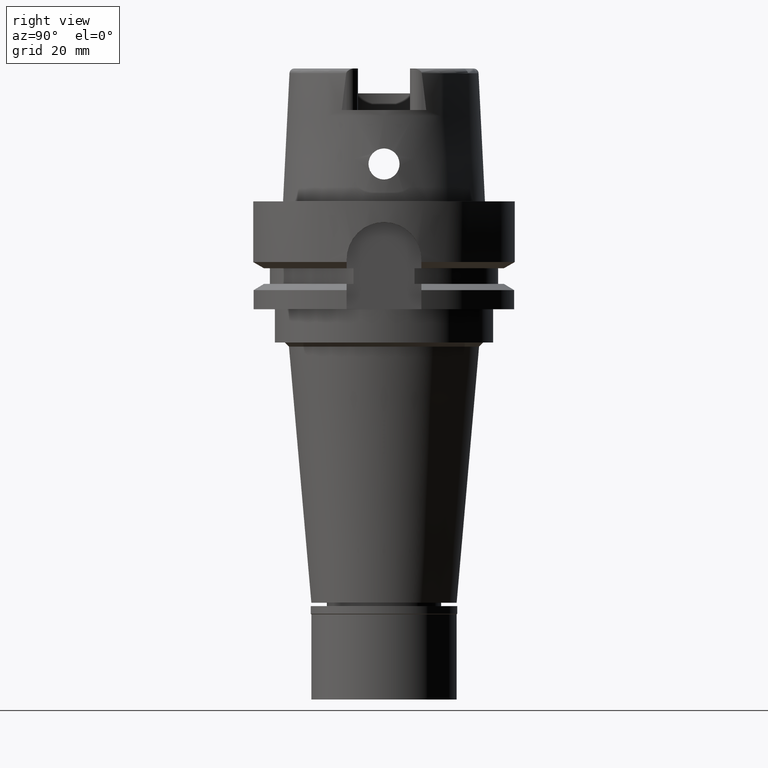
[diagram: clean part render]
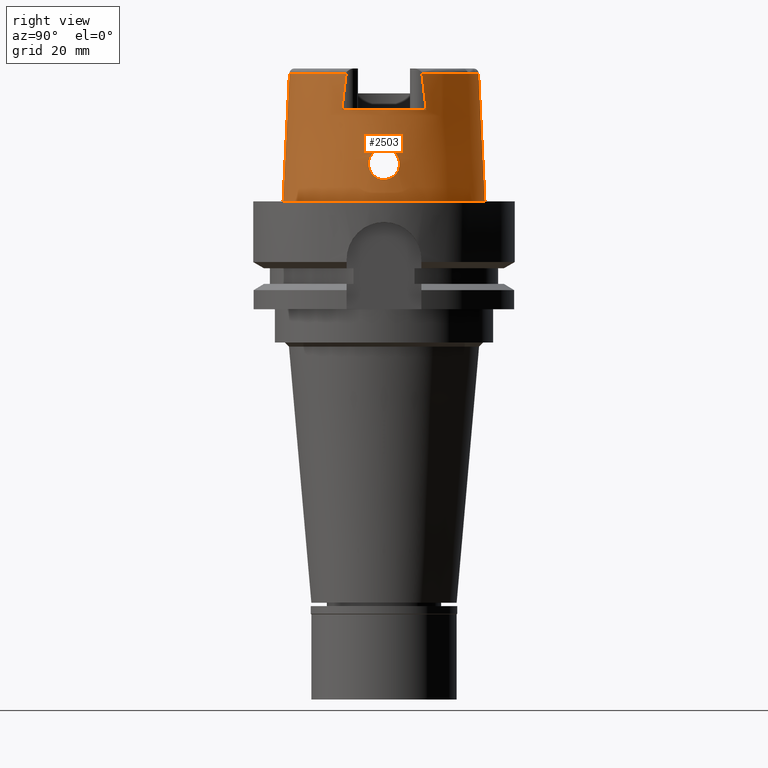
[diagram: same view with one face highlighted and labeled with its STEP entity id]
A machine part, right view. The second image highlights one B-rep face of the part: STEP entity #2503.
In plain terms, the highlighted conical surface has half-angle 2.862 deg.
Its self-contained STEP definition (entity closure, byte-faithful):
#2 = CARTESIAN_POINT ( 'NONE',  ( 23.67751368057999883, 0.0000000000000000000, 12.75000000000000000 ) ) ;
#16 = ORIENTED_EDGE ( 'NONE', *, *, #241, .F. ) ;
#34 = CARTESIAN_POINT ( 'NONE',  ( 24.05252611746999847, 0.2330206284105952597, 5.250000000000000000 ) ) ;
#56 = CARTESIAN_POINT ( 'NONE',  ( 23.59333819179920511, -2.501104577258603801, 11.79528361165681360 ) ) ;
#57 = CARTESIAN_POINT ( 'NONE',  ( 23.85444531008281999, 2.628061224790431361, 6.324954044176378076 ) ) ;
#85 = CARTESIAN_POINT ( 'NONE',  ( 23.54012346970142033, -3.448973503136997909, 10.47220976508766732 ) ) ;
#88 = CARTESIAN_POINT ( 'NONE',  ( 23.87185507047361099, 2.515850901416352148, 6.218977786022961141 ) ) ;
#113 = CARTESIAN_POINT ( 'NONE',  ( 0.0000000000000000000, 0.0000000000000000000, 30.85992712280000205 ) ) ;
#119 = CARTESIAN_POINT ( 'NONE',  ( 23.54997890340377964, -3.214046827833776376, 10.93583360577853547 ) ) ;
#120 = CARTESIAN_POINT ( 'NONE',  ( 23.94319568240380747, 1.974362149943470701, 5.811553053935080371 ) ) ;
#145 = CARTESIAN_POINT ( 'NONE',  ( 23.67205079440455862, -3.510857791499601532, 7.681567904071942010 ) ) ;
#146 = CARTESIAN_POINT ( 'NONE',  ( 23.57139888347374779, 3.749702560420886677, 8.944837237115336848 ) ) ;
#168 = CARTESIAN_POINT ( 'NONE',  ( 23.60596530400283299, -2.288684206395686704, 11.97314402743815087 ) ) ;
#173 = CARTESIAN_POINT ( 'NONE',  ( 20.87000000000000099, 9.459419187967647247, 28.07088142031913591 ) ) ;
#196 = CARTESIAN_POINT ( 'NONE',  ( 23.83743920342759637, -2.730987841632679380, 6.429811586938192214 ) ) ;
#216 = DIRECTION ( 'NONE',  ( 0.0000000000000000000, 0.0000000000000000000, -1.000000000000000000 ) ) ;
#221 = CARTESIAN_POINT ( 'NONE',  ( 23.76357115569841838, -3.127457779017551509, 6.930805173034158884 ) ) ;
#225 = CARTESIAN_POINT ( 'NONE',  ( 0.0000000000000000000, 0.0000000000000000000, 22.00000000000000000 ) ) ;
#241 = EDGE_CURVE ( 'NONE', #892, #3717, #2608, .T. ) ;
#273 = CARTESIAN_POINT ( 'NONE',  ( 23.75741479080602758, -3.156869633053569490, 6.975844215010423177 ) ) ;
#275 = CARTESIAN_POINT ( 'NONE',  ( 23.58310472703412586, 2.663353707504764412, 11.63990641978378093 ) ) ;
#326 = VERTEX_POINT ( 'NONE', #2642 ) ;
#389 = FACE_BOUND ( 'NONE', #4540, .T. ) ;
#407 = EDGE_CURVE ( 'NONE', #892, #326, #5213, .T. ) ;
#442 = CARTESIAN_POINT ( 'NONE',  ( 23.92162626728630315, 2.156623578562969268, 5.930404733941436746 ) ) ;
#474 = CARTESIAN_POINT ( 'NONE',  ( 23.54569491910034884, -3.703843008895926214, 9.599090505343392365 ) ) ;
#477 = CARTESIAN_POINT ( 'NONE',  ( 23.99866231913510717, 1.393681550184608042, 5.518563297037823112 ) ) ;
#480 = CARTESIAN_POINT ( 'NONE',  ( 20.87000000000000099, 9.811659030624156230, 25.11757557699920085 ) ) ;
#497 = ORIENTED_EDGE ( 'NONE', *, *, #3213, .F. ) ;
#499 = CARTESIAN_POINT ( 'NONE',  ( 23.55873825699269020, -3.744918861248046849, 9.210446024920234009 ) ) ;
#501 = CARTESIAN_POINT ( 'NONE',  ( 23.78133917609131842, 3.041200797881504769, 6.805142582907937054 ) ) ;
#524 = CARTESIAN_POINT ( 'NONE',  ( 23.58842366005098867, -2.579909520561684655, 11.72180550121627896 ) ) ;
#525 = CARTESIAN_POINT ( 'NONE',  ( 23.90976702329176717, 2.249124061427443255, 5.996826696203617857 ) ) ;
#550 = CARTESIAN_POINT ( 'NONE',  ( 23.62942742106744376, -1.853709978435128969, 12.26047952015733777 ) ) ;
#552 = CARTESIAN_POINT ( 'NONE',  ( 23.73891592203566958, 3.241956686018367950, 7.111214492155619737 ) ) ;
#579 = CARTESIAN_POINT ( 'NONE',  ( 23.63218521716880005, -1.797561979926379783, 12.29166557561178763 ) ) ;
#580 = CARTESIAN_POINT ( 'NONE',  ( 23.66769063980863308, 0.9503141192353988798, 12.66622881909846576 ) ) ;
#637 = CARTESIAN_POINT ( 'NONE',  ( 23.67751368057999883, 0.0000000000000000000, 12.75000000000000000 ) ) ;
#662 = CARTESIAN_POINT ( 'NONE',  ( 23.97378023506907141, -1.681349748253852860, 5.647557063888932305 ) ) ;
#681 = VERTEX_POINT ( 'NONE', #2110 ) ;
#686 = CARTESIAN_POINT ( 'NONE',  ( 23.67751368057998818, 0.4547686750912053877, 12.75000000000000000 ) ) ;
#820 = CARTESIAN_POINT ( 'NONE',  ( 0.0000000000000000000, 22.77198729362000051, 30.85992712280000205 ) ) ;
#851 = CARTESIAN_POINT ( 'NONE',  ( 23.77397626307294587, 3.077645118919007050, 6.856583337249822385 ) ) ;
#886 = AXIS2_PLACEMENT_3D ( 'NONE', #225, #4573, #1045 ) ;
#892 = VERTEX_POINT ( 'NONE', #1863 ) ;
#899 = CARTESIAN_POINT ( 'NONE',  ( 20.87000527243999670, -9.110771420352000050, 30.85992623711999983 ) ) ;
#909 = CARTESIAN_POINT ( 'NONE',  ( 23.64938649938713766, -1.406668152251788539, 12.47618365923676542 ) ) ;
#910 = CARTESIAN_POINT ( 'NONE',  ( 24.03379724497595049, 0.8295481251543790346, 5.340882007022766054 ) ) ;
#928 = EDGE_CURVE ( 'NONE', #3204, #3717, #4038, .T. ) ;
#934 = CARTESIAN_POINT ( 'NONE',  ( 23.64440452431539796, -1.531532566575376730, 12.42451896226506136 ) ) ;
#935 = CARTESIAN_POINT ( 'NONE',  ( 23.59634238757481484, 3.723340099524829139, 8.538302216285737600 ) ) ;
#936 = ORIENTED_EDGE ( 'NONE', *, *, #4109, .T. ) ;
#961 = CARTESIAN_POINT ( 'NONE',  ( 23.53850411621039740, -3.633744544169425605, 9.958045124343451349 ) ) ;
#962 = CARTESIAN_POINT ( 'NONE',  ( 23.75277519137609872, 3.178608120269889703, 7.006638946302321536 ) ) ;
#989 = CARTESIAN_POINT ( 'NONE',  ( 23.73367447683859766, -3.265749096569670940, 7.155614313024673656 ) ) ;
#991 = CARTESIAN_POINT ( 'NONE',  ( 23.53847571627819946, 3.573501909859066572, 10.13861566870812503 ) ) ;
#1014 = CARTESIAN_POINT ( 'NONE',  ( 23.67782572749102954, -3.490039127773870042, 7.627920332292656092 ) ) ;
#1015 = CARTESIAN_POINT ( 'NONE',  ( 23.62804850155889369, 1.887951122573732432, 12.24242396604399730 ) ) ;
#1039 = CARTESIAN_POINT ( 'NONE',  ( 23.77860793006452411, -3.054943060735184623, 6.821691685173983721 ) ) ;
#1042 = CARTESIAN_POINT ( 'NONE',  ( 23.57804048590833901, 2.745079752102564274, 11.55523859338885906 ) ) ;
#1045 = DIRECTION ( 'NONE',  ( 0.8989877876694615244, 0.4379736951246811505, 0.0000000000000000000 ) ) ;
#1053 = VERTEX_POINT ( 'NONE', #4020 ) ;
#1119 = CARTESIAN_POINT ( 'NONE',  ( 0.0000000000000000000, 0.0000000000000000000, -6.821210263297000155E-13 ) ) ;
#1147 = CARTESIAN_POINT ( 'NONE',  ( 23.99468422016874669, -1.443395001684639967, 5.538908309352845727 ) ) ;
#1231 = DIRECTION ( 'NONE',  ( 0.0000000000000000000, -1.000000000000000000, 0.0000000000000000000 ) ) ;
#1290 = CARTESIAN_POINT ( 'NONE',  ( 24.00093026853868494, 1.364287427761872173, 5.506939795178444008 ) ) ;
#1318 = CARTESIAN_POINT ( 'NONE',  ( 23.53991130874684146, -3.456837673737605421, 10.45355379586240296 ) ) ;
#1319 = CARTESIAN_POINT ( 'NONE',  ( 23.85643553946614048, 2.615540571800767378, 6.312710625131820130 ) ) ;
#1349 = CARTESIAN_POINT ( 'NONE',  ( 23.65232074144521235, -1.330177455993616809, 12.50642445202602993 ) ) ;
#1350 = CARTESIAN_POINT ( 'NONE',  ( 23.68884853374781940, 3.449234434623291268, 7.528128732823298641 ) ) ;
#1376 = CARTESIAN_POINT ( 'NONE',  ( 23.54198867848799637, -3.390552002235085460, 10.60375541867701088 ) ) ;
#1378 = CARTESIAN_POINT ( 'NONE',  ( 23.83838370554087405, 2.728149443932951890, 6.424168850781323492 ) ) ;
#1401 = CARTESIAN_POINT ( 'NONE',  ( 23.58491216268253865, -2.635084159458346953, 11.66815823371514149 ) ) ;
#1402 = CARTESIAN_POINT ( 'NONE',  ( 23.56144698077251221, 3.018196718638003873, 11.22952668626647821 ) ) ;
#1425 = CARTESIAN_POINT ( 'NONE',  ( 23.62502911468870792, -1.939969471885841124, 12.20938238521523012 ) ) ;
#1428 = CARTESIAN_POINT ( 'NONE',  ( 23.53882845546291236, 3.506273123647135392, 10.33051781844049266 ) ) ;
#1451 = CARTESIAN_POINT ( 'NONE',  ( 23.98852202440424719, -1.517744152978178773, 5.570679127785711948 ) ) ;
#1477 = CARTESIAN_POINT ( 'NONE',  ( 23.57585225532902484, 2.780598146946348326, 11.51634302632424145 ) ) ;
#1493 = CARTESIAN_POINT ( 'NONE',  ( 0.0000000000000000000, 0.0000000000000000000, 30.85992712280000205 ) ) ;
#1505 = CARTESIAN_POINT ( 'NONE',  ( 23.53940201038573221, 3.477388698988958193, 10.40368439850717230 ) ) ;
#1674 = CARTESIAN_POINT ( 'NONE',  ( 23.67751368058000239, -0.2269513872612732019, 12.75000000000000000 ) ) ;
#1695 = CARTESIAN_POINT ( 'NONE',  ( 20.87000000000000099, -10.16755860605000095, 22.00000000000000000 ) ) ;
#1706 = CARTESIAN_POINT ( 'NONE',  ( 24.00427732290040339, 1.320141843914369950, 5.489805347323913232 ) ) ;
#1725 = CARTESIAN_POINT ( 'NONE',  ( 23.65619804746822652, -1.222983913731681804, 12.54601526133428457 ) ) ;
#1726 = CARTESIAN_POINT ( 'NONE',  ( 23.85331694720525775, 2.635121393518725430, 6.331911800952712888 ) ) ;
#1734 = EDGE_LOOP ( 'NONE', ( #2795, #4362, #936, #5047, #497, #3540, #16, #3925 ) ) ;
#1745 = CARTESIAN_POINT ( 'NONE',  ( 20.87000000000000099, -9.811228181990475861, 25.12030646021867142 ) ) ;
#1756 = CARTESIAN_POINT ( 'NONE',  ( 23.56271551894606020, -3.748154601131988173, 9.121315281306792144 ) ) ;
#1758 = CARTESIAN_POINT ( 'NONE',  ( 23.82422885752787778, 2.811418817034421647, 6.515321000036132126 ) ) ;
#1788 = CARTESIAN_POINT ( 'NONE',  ( 23.54067280937226059, -3.430146464805382767, 10.51588118124957916 ) ) ;
#1789 = CARTESIAN_POINT ( 'NONE',  ( 24.01740948154369093, 1.127696303198503669, 5.423038006448773984 ) ) ;
#1812 = CARTESIAN_POINT ( 'NONE',  ( 23.61157244542376787, -2.189774713108130211, 12.04672734427118463 ) ) ;
#1813 = CARTESIAN_POINT ( 'NONE',  ( 23.96228084365979427, 1.797917986058273465, 5.708538723601398246 ) ) ;
#1841 = CARTESIAN_POINT ( 'NONE',  ( 23.62000812080645673, -2.035305620900380585, 12.14969530580331636 ) ) ;
#1863 = CARTESIAN_POINT ( 'NONE',  ( 20.87000000000000099, 10.16755860605000095, 22.00000000000000000 ) ) ;
#1869 = CARTESIAN_POINT ( 'NONE',  ( 23.79281216915763864, -2.981624777456258535, 6.722365721808820638 ) ) ;
#1870 = CARTESIAN_POINT ( 'NONE',  ( 23.64567498188359806, 1.498947631069049269, 12.43753578522877135 ) ) ;
#1895 = CARTESIAN_POINT ( 'NONE',  ( 23.84794709165774407, -2.668166512114644728, 6.364910613323234045 ) ) ;
#1897 = CARTESIAN_POINT ( 'NONE',  ( 23.60552657553621003, 2.290055366746530652, 11.97017078850747396 ) ) ;
#1923 = CARTESIAN_POINT ( 'NONE',  ( 23.60270230731519803, 2.338374531394473266, 11.93228113362235554 ) ) ;
#1931 = VERTEX_POINT ( 'NONE', #5359 ) ;
#1937 = CIRCLE ( 'NONE', #2459, 24.31503482328999866 ) ;
#1977 = CARTESIAN_POINT ( 'NONE',  ( 23.82490815689084585, -2.804288303879808097, 6.508992033671674449 ) ) ;
#1982 = CARTESIAN_POINT ( 'NONE',  ( 0.0000000000000000000, -24.31503482328999866, -3.801403636316999971E-13 ) ) ;
#2110 = CARTESIAN_POINT ( 'NONE',  ( 23.67751368057999883, 0.0000000000000000000, 12.75000000000000000 ) ) ;
#2120 = CARTESIAN_POINT ( 'NONE',  ( 23.54807056107686947, 3.727230252585097769, 9.479781320510948461 ) ) ;
#2138 = CARTESIAN_POINT ( 'NONE',  ( 20.87000000000000099, -9.458996941411141890, 28.07361520592533921 ) ) ;
#2145 = CARTESIAN_POINT ( 'NONE',  ( 23.66773446538893566, -0.8256753969521964942, 12.66003663761652653 ) ) ;
#2146 = CARTESIAN_POINT ( 'NONE',  ( 23.88985854456670310, 2.393002862041153200, 6.112126294945598559 ) ) ;
#2169 = CARTESIAN_POINT ( 'NONE',  ( 23.54348889162834624, -3.353180940573416535, 10.67987551544770852 ) ) ;
#2171 = CARTESIAN_POINT ( 'NONE',  ( 23.69852309611226460, 3.411756493341259855, 7.443269542296423680 ) ) ;
#2197 = CARTESIAN_POINT ( 'NONE',  ( 23.63993538101946967, -1.634007878084775101, 12.37752625270847773 ) ) ;
#2199 = CARTESIAN_POINT ( 'NONE',  ( 23.57450211864764356, 3.748431023573169263, 8.887852402833470222 ) ) ;
#2226 = CARTESIAN_POINT ( 'NONE',  ( 23.65176211179383969, -3.579631777665039927, 7.880719817346977685 ) ) ;
#2227 = CARTESIAN_POINT ( 'NONE',  ( 23.63430431680571431, 3.637380524808287330, 8.055101711950131360 ) ) ;
#2251 = CARTESIAN_POINT ( 'NONE',  ( 23.56547879928575995, -3.749604937745080413, 9.061992921395528811 ) ) ;
#2252 = CARTESIAN_POINT ( 'NONE',  ( 23.61122864887437700, 2.191615347195882357, 12.04353253072858898 ) ) ;
#2281 = CARTESIAN_POINT ( 'NONE',  ( 23.59430980799642796, 2.480454764770278597, 11.81512282904603062 ) ) ;
#2286 = EDGE_CURVE ( 'NONE', #5226, #681, #4259, .T. ) ;
#2306 = CARTESIAN_POINT ( 'NONE',  ( 23.75052765708723967, -3.189268332251436799, 7.026898148130331201 ) ) ;
#2344 = DIRECTION ( 'NONE',  ( 0.9164775804687985694, -0.4000860463675992573, 0.0000000000000000000 ) ) ;
#2382 = DIRECTION ( 'NONE',  ( 0.0000000000000000000, 0.0000000000000000000, 1.000000000000000000 ) ) ;
#2459 = AXIS2_PLACEMENT_3D ( 'NONE', #1119, #2382, #4064 ) ;
#2503 = ADVANCED_FACE ( 'NONE', ( #2892, #389 ), #4483, .T. ) ;
#2530 = CARTESIAN_POINT ( 'NONE',  ( 23.93529964074429373, 2.042254329094079779, 5.854882687247732420 ) ) ;
#2558 = CARTESIAN_POINT ( 'NONE',  ( 23.95663938298303108, 1.852160069758198135, 5.738715043770866941 ) ) ;
#2584 = CARTESIAN_POINT ( 'NONE',  ( 23.61880226424466755, -2.057618877119650858, 12.13508920333068097 ) ) ;
#2585 = CARTESIAN_POINT ( 'NONE',  ( 23.80284653701512809, 2.929286350929843685, 6.657867884028465966 ) ) ;
#2607 = CARTESIAN_POINT ( 'NONE',  ( 23.61752556299038019, -2.081093538118418351, 12.11955267746744980 ) ) ;
#2608 = B_SPLINE_CURVE_WITH_KNOTS ( 'NONE', 3,
 ( #5194, #480, #173, #3096 ),
 .UNSPECIFIED., .F., .F.,
 ( 4, 4 ),
 ( 0.0000000000000000000, 1.000000000000000000 ),
 .UNSPECIFIED. ) ;
#2609 = CARTESIAN_POINT ( 'NONE',  ( 23.93369273856030688, 2.055826831332561611, 5.863737623340374405 ) ) ;
#2634 = B_SPLINE_CURVE_WITH_KNOTS ( 'NONE', 3,
 ( #2, #1674, #3007, #2145, #4686, #5222, #1725, #1349, #3445, #909, #3415, #4299, #934, #2197, #579, #550, #1425, #2637, #1841, #2584, #4714, #2607, #1812, #168, #5138, #56, #524, #3870, #1401, #5107, #3496, #3842, #119, #3059, #2169, #1376, #1788, #85, #1318, #2670, #4736, #3034, #961, #474, #4273, #3117, #499, #1756, #2251, #5164, #3524, #3473, #4330, #4793, #2226, #3896, #145, #1014, #5190, #2693, #3818, #3088, #4354, #4767, #989, #3916, #2306, #273, #3974, #4491, #221, #1039, #1869, #3196, #1977, #196, #2748, #4900, #1895, #5251, #3653, #4928, #2720, #662, #2773, #1451, #4407, #3139, #1147, #4438, #5353, #4377, #4817 ),
 .UNSPECIFIED., .F., .F.,
 ( 4, 2, 2, 1, 1, 1, 2, 2, 2, 2, 1, 1, 2, 2, 2, 1, 1, 2, 2, 2, 2, 1, 1, 1, 2, 2, 2, 2, 1, 2, 2, 2, 2, 1, 1, 1, 2, 2, 2, 2, 1, 1, 2, 2, 2, 1, 1, 2, 2, 2, 2, 1, 1, 1, 2, 2, 4 ),
 ( 0.0000000000000000000, 0.06250000000000727196, 0.09375000000001096345, 0.1093750000000128508, 0.1171875000000138917, 0.1210937500000143774, 0.1230468750000145162, 0.1250000000000146549, 0.1562500000000181521, 0.1718750000000197897, 0.1796875000000207057, 0.1835937500000212885, 0.1855468750000215938, 0.1875000000000218991, 0.2187500000000263956, 0.2343750000000286715, 0.2421875000000299483, 0.2460937500000304479, 0.2500000000000309197, 0.3125000000000363598, 0.3437500000000390243, 0.3593750000000405787, 0.3671875000000415779, 0.3710937500000420219, 0.3730468750000422440, 0.3750000000000424660, 0.4375000000000469069, 0.4687500000000488498, 0.4843750000000496270, 0.4921875000000498490, 0.5000000000000499600, 0.5625000000000509592, 0.5937500000000515143, 0.6093750000000518474, 0.6171875000000518474, 0.6210937500000517364, 0.6230468750000515143, 0.6250000000000512923, 0.6562500000000462963, 0.6718750000000438538, 0.6796875000000426326, 0.6835937500000419664, 0.6855468750000416334, 0.6875000000000413003, 0.7187500000000370814, 0.7343750000000349720, 0.7421875000000337508, 0.7460937500000331957, 0.7500000000000326406, 0.8125000000000235367, 0.8437500000000189848, 0.8593750000000168754, 0.8671875000000158762, 0.8710937500000153211, 0.8730468750000150990, 0.8750000000000148770, 1.000000000000000000 ),
 .UNSPECIFIED. ) ;
#2637 = CARTESIAN_POINT ( 'NONE',  ( 23.62276455844266820, -1.983607422093945472, 12.18275417012418771 ) ) ;
#2638 = CARTESIAN_POINT ( 'NONE',  ( 23.70845385947058759, 3.372285922813640813, 7.357726895347577845 ) ) ;
#2642 = CARTESIAN_POINT ( 'NONE',  ( 20.87000000000000099, -10.16755860605000095, 22.00000000000000000 ) ) ;
#2670 = CARTESIAN_POINT ( 'NONE',  ( 23.53977503929554871, -3.462035369318939182, 10.44113026532034993 ) ) ;
#2693 = CARTESIAN_POINT ( 'NONE',  ( 23.68201647359731865, -3.474675521621258589, 7.589610597458180230 ) ) ;
#2694 = CARTESIAN_POINT ( 'NONE',  ( 23.53953854797020639, 3.471460714865209241, 10.41828155160253644 ) ) ;
#2720 = CARTESIAN_POINT ( 'NONE',  ( 23.95873978133038662, -1.834440388006888689, 5.727299138908927389 ) ) ;
#2723 = CARTESIAN_POINT ( 'NONE',  ( 23.53962613877423848, 3.467840208284961090, 10.42710304726953296 ) ) ;
#2748 = CARTESIAN_POINT ( 'NONE',  ( 23.84281696175266418, -2.698952979478635772, 6.396465790414782582 ) ) ;
#2751 = CARTESIAN_POINT ( 'NONE',  ( 23.54618831461440820, 3.289801008922267123, 10.81642949159175870 ) ) ;
#2773 = CARTESIAN_POINT ( 'NONE',  ( 23.98090419754306879, -1.605299847173069061, 5.610183344315630372 ) ) ;
#2775 = CARTESIAN_POINT ( 'NONE',  ( 23.64681667816948263, 1.471097715601739964, 12.44956119125925653 ) ) ;
#2778 = ORIENTED_EDGE ( 'NONE', *, *, #2286, .F. ) ;
#2788 = CARTESIAN_POINT ( 'NONE',  ( 24.05252611746999847, 0.0000000000000000000, 5.250000000000000000 ) ) ;
#2795 = ORIENTED_EDGE ( 'NONE', *, *, #3143, .F. ) ;
#2892 = FACE_OUTER_BOUND ( 'NONE', #1734, .T. ) ;
#2955 = CARTESIAN_POINT ( 'NONE',  ( 23.71853918571125774, 3.330005339325847746, 7.274489089508011652 ) ) ;
#2979 = CARTESIAN_POINT ( 'NONE',  ( 23.99739252513016652, 1.409832349321153755, 5.525079006410265947 ) ) ;
#3007 = CARTESIAN_POINT ( 'NONE',  ( 23.67506887678223393, -0.4635051429249743005, 12.72935586687458809 ) ) ;
#3009 = CARTESIAN_POINT ( 'NONE',  ( 23.98791529884973528, 1.528519574464706654, 5.573758551561998509 ) ) ;
#3034 = CARTESIAN_POINT ( 'NONE',  ( 23.53728696348313321, -3.562875074288860411, 10.19646462181034252 ) ) ;
#3035 = CARTESIAN_POINT ( 'NONE',  ( 23.65783237490413882, 3.565134841456601311, 7.806601852422344834 ) ) ;
#3059 = CARTESIAN_POINT ( 'NONE',  ( 23.54698575167824970, -3.273586086686905983, 10.83285318657880936 ) ) ;
#3088 = CARTESIAN_POINT ( 'NONE',  ( 23.69435542170927178, -3.428888603837092930, 7.478149917515295009 ) ) ;
#3090 = CARTESIAN_POINT ( 'NONE',  ( 23.58186907650325281, 2.683260232001078993, 11.61967469033762690 ) ) ;
#3096 = CARTESIAN_POINT ( 'NONE',  ( 20.86994457043000040, 9.110917567833000774, 30.85992712280000205 ) ) ;
#3117 = CARTESIAN_POINT ( 'NONE',  ( 23.55526397070801892, -3.738467422146296126, 9.299942064375525064 ) ) ;
#3118 = CARTESIAN_POINT ( 'NONE',  ( 23.58265110687879229, 2.670658400361637153, 11.63252059145067996 ) ) ;
#3139 = CARTESIAN_POINT ( 'NONE',  ( 23.99367851427094323, -1.455744018361910808, 5.544084177101752609 ) ) ;
#3140 = CARTESIAN_POINT ( 'NONE',  ( 23.55712716048165234, 3.092150763609360364, 11.12509537413444427 ) ) ;
#3143 = EDGE_CURVE ( 'NONE', #1053, #326, #5072, .T. ) ;
#3158 = DIRECTION ( 'NONE',  ( 0.0000000000000000000, 1.000000000000000000, 0.0000000000000000000 ) ) ;
#3177 = AXIS2_PLACEMENT_3D ( 'NONE', #113, #216, #3158 ) ;
#3196 = CARTESIAN_POINT ( 'NONE',  ( 23.81419649909655689, -2.864577946382908191, 6.579154229658604969 ) ) ;
#3198 = CARTESIAN_POINT ( 'NONE',  ( 23.58882188224290033, 2.571336098065132525, 11.73236217465924192 ) ) ;
#3204 = VERTEX_POINT ( 'NONE', #820 ) ;
#3213 = EDGE_CURVE ( 'NONE', #3204, #1931, #4178, .T. ) ;
#3314 = DIRECTION ( 'NONE',  ( 8.032179027582384478E-05, -0.04993928193351242217, -0.9987522523971473776 ) ) ;
#3339 = VECTOR ( 'NONE', #3437, 1000.000000000000000 ) ;
#3415 = CARTESIAN_POINT ( 'NONE',  ( 23.64878484845253226, -1.421956488100810434, 12.46995790597698672 ) ) ;
#3416 = CARTESIAN_POINT ( 'NONE',  ( 23.93272532167772937, 2.063943773005807447, 5.869076999087940116 ) ) ;
#3437 = DIRECTION ( 'NONE',  ( -8.032179027593385064E-05, 0.04993928193351242217, -0.9987522523971473776 ) ) ;
#3445 = CARTESIAN_POINT ( 'NONE',  ( 23.65028181327793533, -1.383730428239752674, 12.48543614887560516 ) ) ;
#3468 = EDGE_CURVE ( 'NONE', #1053, #4426, #4015, .T. ) ;
#3473 = CARTESIAN_POINT ( 'NONE',  ( 23.59495348939770665, -3.730342684931128971, 8.545370871931634582 ) ) ;
#3474 = CARTESIAN_POINT ( 'NONE',  ( 24.01170302820565894, 1.216785074032606051, 5.451925338324097758 ) ) ;
#3496 = CARTESIAN_POINT ( 'NONE',  ( 23.57090186726154357, -2.851781625049270907, 11.45073863210614284 ) ) ;
#3497 = CARTESIAN_POINT ( 'NONE',  ( 23.56998632670678262, 3.750010322587971956, 8.971669764656951429 ) ) ;
#3524 = CARTESIAN_POINT ( 'NONE',  ( 23.57970005628003207, -3.750167328868399430, 8.779390912065066388 ) ) ;
#3540 = ORIENTED_EDGE ( 'NONE', *, *, #928, .T. ) ;
#3575 = CARTESIAN_POINT ( 'NONE',  ( 23.62264525851880137, 1.991679634917923991, 12.17960541680815467 ) ) ;
#3601 = CARTESIAN_POINT ( 'NONE',  ( 23.57160208260821932, 2.849850593792381481, 11.43837747627181933 ) ) ;
#3653 = CARTESIAN_POINT ( 'NONE',  ( 23.91123496931431802, -2.248781553624042751, 5.988928207454921271 ) ) ;
#3717 = VERTEX_POINT ( 'NONE', #4124 ) ;
#3736 = CARTESIAN_POINT ( 'NONE',  ( 0.0000000000000000000, 0.0000000000000000000, 15.42996356139999925 ) ) ;
#3798 = CARTESIAN_POINT ( 'NONE',  ( 24.05252611746999847, 0.0000000000000000000, 5.250000000000000000 ) ) ;
#3818 = CARTESIAN_POINT ( 'NONE',  ( 23.68304362733470114, -3.470877625524187771, 7.580299075644321150 ) ) ;
#3819 = CARTESIAN_POINT ( 'NONE',  ( 23.86621557181318565, 2.553079942517995526, 6.252940660098202486 ) ) ;
#3835 = CARTESIAN_POINT ( 'NONE',  ( 0.002481821280839999633, 22.77198688789000158, 30.85992712280000205 ) ) ;
#3842 = CARTESIAN_POINT ( 'NONE',  ( 23.56094409365704223, -3.013962344041193120, 11.24471067885847475 ) ) ;
#3846 = CARTESIAN_POINT ( 'NONE',  ( 23.85940432406666289, 2.596772025734658040, 6.294486332334705558 ) ) ;
#3870 = CARTESIAN_POINT ( 'NONE',  ( 23.58631684051568911, -2.613093869546720960, 11.68969836905694137 ) ) ;
#3872 = CARTESIAN_POINT ( 'NONE',  ( 24.04784389934648559, 0.4712513736940674436, 5.271783206853585035 ) ) ;
#3896 = CARTESIAN_POINT ( 'NONE',  ( 23.66082602751054509, -3.550080215715573750, 7.788869906547333244 ) ) ;
#3897 = CARTESIAN_POINT ( 'NONE',  ( 23.57934643363695670, 3.745538139941031464, 8.801895674855767737 ) ) ;
#3916 = CARTESIAN_POINT ( 'NONE',  ( 23.74482207473038642, -3.215438586483871486, 7.070091031274563953 ) ) ;
#3925 = ORIENTED_EDGE ( 'NONE', *, *, #407, .T. ) ;
#3934 = ORIENTED_EDGE ( 'NONE', *, *, #4539, .F. ) ;
#3974 = CARTESIAN_POINT ( 'NONE',  ( 23.76041583832176585, -3.142574827572143459, 6.953832695458265434 ) ) ;
#3976 = CARTESIAN_POINT ( 'NONE',  ( 23.53920776526702952, 3.486207550818824163, 10.38177082370857285 ) ) ;
#4015 = CIRCLE ( 'NONE', #4209, 22.77198729362001117 ) ;
#4020 = CARTESIAN_POINT ( 'NONE',  ( 20.87000527243999670, -9.110771420352000050, 30.85992623711999983 ) ) ;
#4032 = CARTESIAN_POINT ( 'NONE',  ( 23.54158990404333807, 3.389280172414547376, 10.61710521059370294 ) ) ;
#4038 = CIRCLE ( 'NONE', #3177, 22.77198729362000051 ) ;
#4064 = DIRECTION ( 'NONE',  ( 0.0000000000000000000, -1.000000000000000000, 0.0000000000000000000 ) ) ;
#4105 = DIRECTION ( 'NONE',  ( 0.0000000000000000000, 0.0000000000000000000, -1.000000000000000000 ) ) ;
#4109 = EDGE_CURVE ( 'NONE', #4426, #4346, #5025, .T. ) ;
#4124 = CARTESIAN_POINT ( 'NONE',  ( 20.86994457043000040, 9.110917567833000774, 30.85992712280000205 ) ) ;
#4160 = CARTESIAN_POINT ( 'NONE',  ( 0.0000000000000000000, -22.77198729362000051, 30.85992712280000205 ) ) ;
#4178 = LINE ( 'NONE', #3835, #3339 ) ;
#4209 = AXIS2_PLACEMENT_3D ( 'NONE', #1493, #4105, #2344 ) ;
#4217 = CARTESIAN_POINT ( 'NONE',  ( 24.02794447232157182, 0.9491222930176445027, 5.369973678452584664 ) ) ;
#4247 = CARTESIAN_POINT ( 'NONE',  ( 23.93769659376928161, 2.021892078297302664, 5.841692073259117102 ) ) ;
#4255 = CARTESIAN_POINT ( 'NONE',  ( -0.002481821280835999795, -22.77198688789000158, 30.85992712280000205 ) ) ;
#4259 = B_SPLINE_CURVE_WITH_KNOTS ( 'NONE', 3,
 ( #3798, #34, #3872, #910, #4217, #1789, #3474, #1706, #1290, #477, #2979, #3009, #4687, #1813, #2558, #4660, #120, #4247, #2530, #2609, #3416, #442, #525, #2146, #5110, #88, #3819, #3846, #1319, #57, #1726, #1378, #1758, #2585, #4275, #501, #851, #962, #552, #2955, #2638, #2171, #4332, #1350, #3035, #2227, #4716, #935, #4301, #3897, #2199, #146, #3497, #5191, #2120, #4851, #5307, #991, #4818, #1428, #3976, #1505, #2694, #2723, #4032, #2751, #3140, #1402, #4378, #3601, #1477, #1042, #5224, #3090, #3118, #275, #3198, #2281, #1923, #1897, #2252, #4410, #3575, #1015, #4440, #4878, #4464, #1870, #2775, #580, #686, #637 ),
 .UNSPECIFIED., .F., .F.,
 ( 4, 2, 2, 1, 1, 2, 2, 2, 2, 1, 1, 2, 2, 2, 2, 1, 1, 2, 2, 2, 2, 2, 2, 1, 2, 2, 2, 2, 1, 2, 2, 2, 2, 1, 1, 1, 2, 2, 2, 2, 2, 1, 1, 2, 2, 2, 2, 2, 2, 1, 2, 2, 4 ),
 ( 0.0000000000000000000, 0.06249999999999898692, 0.09374999999999847344, 0.1093749999999981959, 0.1171874999999980571, 0.1210937499999979461, 0.1249999999999978212, 0.1562499999999966971, 0.1718749999999960587, 0.1796874999999957256, 0.1835937499999955314, 0.1855468749999955314, 0.1874999999999955314, 0.2187499999999950318, 0.2343749999999947820, 0.2421874999999946432, 0.2460937499999944766, 0.2480468749999945044, 0.2499999999999945322, 0.2812499999999967804, 0.2968749999999978906, 0.3124999999999990563, 0.3437500000000014988, 0.3593750000000026645, 0.3671875000000032752, 0.3750000000000038303, 0.4375000000000068834, 0.4687500000000086597, 0.4843750000000096034, 0.4921875000000100475, 0.5000000000000105471, 0.5625000000000156541, 0.5937500000000182077, 0.6093750000000193179, 0.6171875000000198730, 0.6210937500000198730, 0.6230468750000198730, 0.6250000000000198730, 0.6875000000000190958, 0.7187500000000186517, 0.7343750000000184297, 0.7421875000000182077, 0.7460937500000179856, 0.7480468750000177636, 0.7500000000000174305, 0.7812500000000153211, 0.7968750000000143219, 0.8125000000000132117, 0.8437500000000112133, 0.8593750000000102141, 0.8671875000000094369, 0.8750000000000088818, 1.000000000000000000 ),
 .UNSPECIFIED. ) ;
#4273 = CARTESIAN_POINT ( 'NONE',  ( 23.54898603236350851, -3.721192556881464775, 9.479209336651615914 ) ) ;
#4275 = CARTESIAN_POINT ( 'NONE',  ( 23.79569408876200498, 2.967403451601950071, 6.706352657922328042 ) ) ;
#4299 = CARTESIAN_POINT ( 'NONE',  ( 23.64841175442501608, -1.431346043313669991, 12.46609134555303022 ) ) ;
#4301 = CARTESIAN_POINT ( 'NONE',  ( 23.58475913531163215, 3.739587043079369622, 8.714569916990241083 ) ) ;
#4330 = CARTESIAN_POINT ( 'NONE',  ( 23.62377831160324249, -3.662485773487997864, 8.185377997611853473 ) ) ;
#4332 = CARTESIAN_POINT ( 'NONE',  ( 23.69193693451389748, 3.437424228148800776, 7.500797957734231858 ) ) ;
#4346 = VERTEX_POINT ( 'NONE', #1982 ) ;
#4354 = CARTESIAN_POINT ( 'NONE',  ( 23.70640750613148384, -3.381793009131023098, 7.374863827594539067 ) ) ;
#4362 = ORIENTED_EDGE ( 'NONE', *, *, #3468, .T. ) ;
#4377 = CARTESIAN_POINT ( 'NONE',  ( 24.05252611746999492, -0.4684032865622461128, 5.249999999999996447 ) ) ;
#4378 = CARTESIAN_POINT ( 'NONE',  ( 23.56893701871145552, 2.893638972048011571, 11.38616924561897648 ) ) ;
#4407 = CARTESIAN_POINT ( 'NONE',  ( 23.99215757216187583, -1.474292617977684072, 5.551916808151428739 ) ) ;
#4410 = CARTESIAN_POINT ( 'NONE',  ( 23.61419391207579110, 2.139960033957108543, 12.08003500739064684 ) ) ;
#4426 = VERTEX_POINT ( 'NONE', #4160 ) ;
#4438 = CARTESIAN_POINT ( 'NONE',  ( 23.99508537015142551, -1.438443636356745658, 5.536844860276525893 ) ) ;
#4440 = CARTESIAN_POINT ( 'NONE',  ( 23.63580688423617460, 1.725314063223735594, 12.33010278181370367 ) ) ;
#4464 = CARTESIAN_POINT ( 'NONE',  ( 23.64326209526594269, 1.556598782634977418, 12.41181718521306898 ) ) ;
#4483 = CONICAL_SURFACE ( 'NONE', #5108, 23.54351105844999736, 0.04996004983832824653 ) ;
#4491 = CARTESIAN_POINT ( 'NONE',  ( 23.76242751861649083, -3.132952858019927511, 6.939130383917887279 ) ) ;
#4539 = EDGE_CURVE ( 'NONE', #681, #5226, #2634, .T. ) ;
#4540 = EDGE_LOOP ( 'NONE', ( #2778, #3934 ) ) ;
#4573 = DIRECTION ( 'NONE',  ( 0.0000000000000000000, 0.0000000000000000000, -1.000000000000000000 ) ) ;
#4639 = EDGE_CURVE ( 'NONE', #4346, #1931, #1937, .T. ) ;
#4660 = CARTESIAN_POINT ( 'NONE',  ( 23.94774838393560401, 1.933613314520693960, 5.786803200496181354 ) ) ;
#4686 = CARTESIAN_POINT ( 'NONE',  ( 23.66467846064172775, -0.9475912546230652600, 12.63054559880869832 ) ) ;
#4687 = CARTESIAN_POINT ( 'NONE',  ( 23.97834760962543399, 1.635791438520002306, 5.623375643611203678 ) ) ;
#4714 = CARTESIAN_POINT ( 'NONE',  ( 23.61799290961543463, -2.072527906661027153, 12.12525324292784390 ) ) ;
#4716 = CARTESIAN_POINT ( 'NONE',  ( 23.60507502096870880, 3.706713120084413671, 8.418626359689731942 ) ) ;
#4736 = CARTESIAN_POINT ( 'NONE',  ( 23.53972026296998621, -3.464174704108796465, 10.43598581007719162 ) ) ;
#4767 = CARTESIAN_POINT ( 'NONE',  ( 23.72659416733992899, -3.296582928251468481, 7.211477179058648268 ) ) ;
#4793 = CARTESIAN_POINT ( 'NONE',  ( 23.63437736442657311, -3.633519123585600141, 8.063919906026017159 ) ) ;
#4817 = CARTESIAN_POINT ( 'NONE',  ( 24.05252611746999847, 0.0000000000000000000, 5.250000000000000000 ) ) ;
#4818 = CARTESIAN_POINT ( 'NONE',  ( 23.53836555107922379, 3.544358573376882759, 10.22755503356384388 ) ) ;
#4851 = CARTESIAN_POINT ( 'NONE',  ( 23.54087069514795871, 3.656718667922326471, 9.840174060235479914 ) ) ;
#4878 = CARTESIAN_POINT ( 'NONE',  ( 23.63959945510407934, 1.642237172702917247, 12.37230420096502748 ) ) ;
#4900 = CARTESIAN_POINT ( 'NONE',  ( 23.84640375837144077, -2.677460166250193563, 6.374367766792042644 ) ) ;
#4928 = CARTESIAN_POINT ( 'NONE',  ( 23.94765610711704440, -1.937835651601981679, 5.787125750776193733 ) ) ;
#5015 = DIRECTION ( 'NONE',  ( 0.0000000000000000000, 0.0000000000000000000, -1.000000000000000000 ) ) ;
#5025 = LINE ( 'NONE', #4255, #5379 ) ;
#5047 = ORIENTED_EDGE ( 'NONE', *, *, #4639, .T. ) ;
#5072 = B_SPLINE_CURVE_WITH_KNOTS ( 'NONE', 3,
 ( #899, #2138, #1745, #1695 ),
 .UNSPECIFIED., .F., .F.,
 ( 4, 4 ),
 ( 0.0000000000000000000, 1.000000000000000000 ),
 .UNSPECIFIED. ) ;
#5107 = CARTESIAN_POINT ( 'NONE',  ( 23.58429512640833892, -2.644693019214278795, 11.65864566953740322 ) ) ;
#5108 = AXIS2_PLACEMENT_3D ( 'NONE', #3736, #5015, #1231 ) ;
#5110 = CARTESIAN_POINT ( 'NONE',  ( 23.88286911620279085, 2.441808228644961609, 6.153171268641784764 ) ) ;
#5138 = CARTESIAN_POINT ( 'NONE',  ( 23.59754828101056745, -2.431261702487407472, 11.85574101331722474 ) ) ;
#5164 = CARTESIAN_POINT ( 'NONE',  ( 23.56699844841940461, -3.749977885765248153, 9.030755630981808224 ) ) ;
#5190 = CARTESIAN_POINT ( 'NONE',  ( 23.68033553087937904, -3.480855900362971767, 7.604933532671464214 ) ) ;
#5191 = CARTESIAN_POINT ( 'NONE',  ( 23.55647538110043726, 3.749915280871790380, 9.238656192762492836 ) ) ;
#5194 = CARTESIAN_POINT ( 'NONE',  ( 20.87000000000000099, 10.16755860605000095, 22.00000000000000000 ) ) ;
#5213 = CIRCLE ( 'NONE', #886, 23.21499834174998966 ) ;
#5222 = CARTESIAN_POINT ( 'NONE',  ( 23.65917765209675139, -1.131085051614149073, 12.57592215221918153 ) ) ;
#5224 = CARTESIAN_POINT ( 'NONE',  ( 23.58070392396732018, 2.702047492883545843, 11.60038483819852573 ) ) ;
#5226 = VERTEX_POINT ( 'NONE', #2788 ) ;
#5251 = CARTESIAN_POINT ( 'NONE',  ( 23.88272739056226612, -2.457320612852021302, 6.153409036202050153 ) ) ;
#5307 = CARTESIAN_POINT ( 'NONE',  ( 23.53937196718940683, 3.627147388126861216, 9.960077073979292095 ) ) ;
#5353 = CARTESIAN_POINT ( 'NONE',  ( 24.03357659258140444, -0.9592385980873426865, 5.338998006692526666 ) ) ;
#5359 = CARTESIAN_POINT ( 'NONE',  ( 0.0000000000000000000, 24.31503482328999866, -6.821210263297000155E-13 ) ) ;
#5379 = VECTOR ( 'NONE', #3314, 1000.000000000000000 ) ;